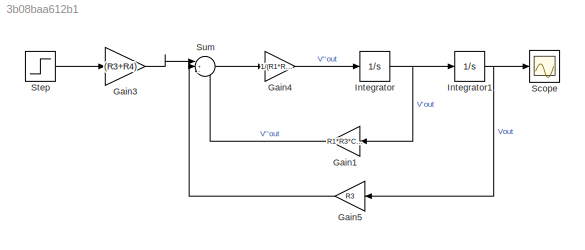
MODEL slx_3b08baa612b1
KIND model
CONFIG AbsTol = auto
CONFIG EnableMultiTasking = off
CONFIG FixedStep = auto
CONFIG MaxStep = 0.0000001
CONFIG MinStep = auto
CONFIG RelTol = 1e-3
CONFIG SampleTimeConstraint = Unconstrained
CONFIG SolverName = VariableStepAuto
CONFIG StartTime = 0.0
CONFIG StopTime = 0.003
BLOCK [Gain] Gain1
  Gain = R1*R3*C1+R2*R3*C2+R1*R3*C2-R3*R1*C1-R4*R1*C1
  NameLocation = top
BLOCK [Gain] Gain3
  Gain = (R3+R4)
BLOCK [Gain] Gain4
  Gain = 1/(R1*R2*C1*C2*R3)
BLOCK [Gain] Gain5
  Gain = R3
  NameLocation = top
BLOCK [Integrator] Integrator
BLOCK [Integrator] Integrator1
BLOCK [Scope] Scope
  Floating = off
  NumInputPorts = 1
  ScopeSpecificationString = Simulink.scopes.TimeScopeBlockCfg('CurrentConfiguration', extmgr.ConfigurationSet(extmgr.Configuration('Core','General UI',true),extmgr.Configuration('Core','Source UI',true),extmgr.Configuration('Sources','WiredSimulink',true,'DataLoggingVariableName','ScopeData1'),extmgr.Configuration('Visuals','Time Domain',true,'SerializedDisplays',{struct('MinYLimReal','-0.45136','MaxYLimReal','4.06222','YLab...<+1428ch>
BLOCK [Step] Step
  SampleTime = 0
  Time = 0
BLOCK [Sum] Sum
  Inputs = |+--
LINE Gain1:1 -> Sum:3
LINE Gain3:1 -> Sum:1
LINE Gain4:1 -> Integrator:1
LINE Gain5:1 -> Sum:2
NET Integrator1:1 -> Gain5:1, Scope:1
NET Integrator:1 -> Gain1:1, Integrator1:1
LINE Step:1 -> Gain3:1
LINE Sum:1 -> Gain4:1
note: NET lines group one-source signal fan-out (src -> all destinations, sorted); 1:1 wires keep LINE
